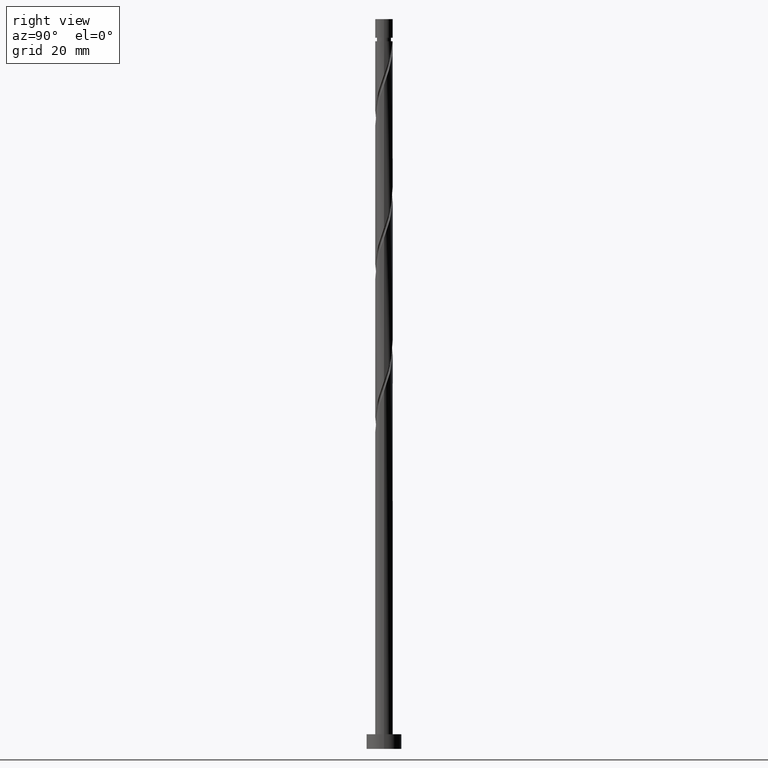
[diagram: clean part render]
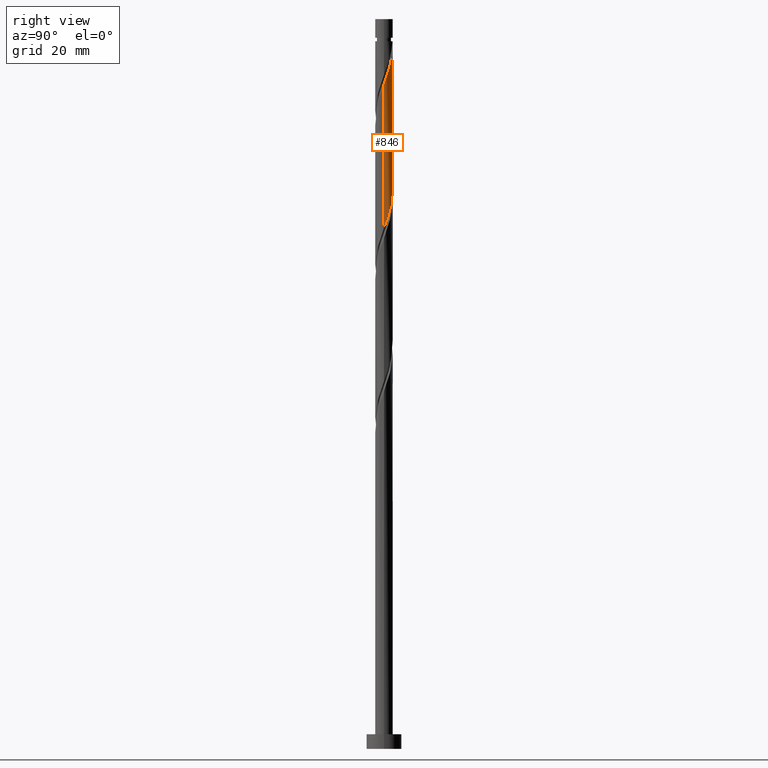
[diagram: same view with one face highlighted and labeled with its STEP entity id]
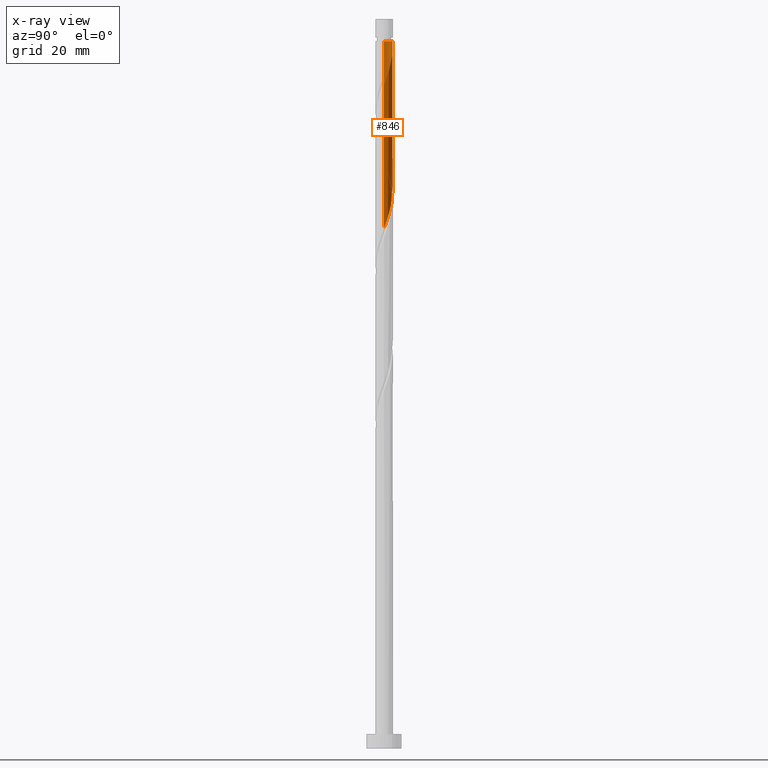
[diagram: x-ray of the same camera — body ghosted, the highlighted face saturated]
A machine part, right view. The second image highlights one B-rep face of the part: STEP entity #846.
The next image is the same camera in x-ray: the body ghosted, the highlighted face saturated — about 0% of this face is hidden behind the body in this view.
In plain terms, the highlighted cylindrical surface (edge-blend (fillet) strip) has radius 3 mm, axis along (-0, -0, -1).
Its self-contained STEP definition (entity closure, byte-faithful):
#1 = CARTESIAN_POINT ( 'NONE',  ( 2.940000000000005720, 0.5969924622639731782, 229.2760515846316594 ) ) ;
#20 = CARTESIAN_POINT ( 'NONE',  ( 3.000000000000000888, 0.03609869149917855485, 178.5509313507628519 ) ) ;
#25 = EDGE_CURVE ( 'NONE', #1520, #436, #510, .T. ) ;
#66 = DIRECTION ( 'NONE',  ( -0.000000000000000000, -0.000000000000000000, -1.000000000000000000 ) ) ;
#79 = ORIENTED_EDGE ( 'NONE', *, *, #25, .F. ) ;
#113 = EDGE_LOOP ( 'NONE', ( #1841, #682, #79, #1890, #592 ) ) ;
#143 = CIRCLE ( 'NONE', #203, 2.999999999999983125 ) ;
#169 = DIRECTION ( 'NONE',  ( -0.000000000000000000, -0.000000000000000000, -1.000000000000000000 ) ) ;
#175 = VECTOR ( 'NONE', #1135, 1000.000000000000000 ) ;
#184 = CYLINDRICAL_SURFACE ( 'NONE', #1796, 3.000000000000000444 ) ;
#186 = CARTESIAN_POINT ( 'NONE',  ( 2.516856822501207791, 1.667239772048620283, 183.3385515846316594 ) ) ;
#189 = DIRECTION ( 'NONE',  ( -1.000000000000000000, 0.000000000000000000, 0.000000000000000000 ) ) ;
#203 = AXIS2_PLACEMENT_3D ( 'NONE', #1802, #169, #189 ) ;
#220 = EDGE_CURVE ( 'NONE', #1602, #641, #1868, .T. ) ;
#249 = FACE_OUTER_BOUND ( 'NONE', #113, .T. ) ;
#251 = CARTESIAN_POINT ( 'NONE',  ( -1.366312515670595085, 2.670803270464129575, 195.5260515846317162 ) ) ;
#253 = CARTESIAN_POINT ( 'NONE',  ( 2.872735104178516075, 0.9282509055703001000, 230.2135515846316309 ) ) ;
#261 = CARTESIAN_POINT ( 'NONE',  ( 1.667239772048623614, 2.516856822501210456, 235.8385515846316309 ) ) ;
#273 = EDGE_CURVE ( 'NONE', #1341, #641, #143, .T. ) ;
#311 = CARTESIAN_POINT ( 'NONE',  ( 2.990997868343353794, 0.4101078809741718900, 179.5885515846317446 ) ) ;
#320 = CARTESIAN_POINT ( 'NONE',  ( 2.999131382082420583, 0.07218693100826245601, 178.6510515846317162 ) ) ;
#368 = CARTESIAN_POINT ( 'NONE',  ( -2.733444741546702250, 1.236236160654865968, 201.1510515846316878 ) ) ;
#381 = CARTESIAN_POINT ( 'NONE',  ( -3.000000000000000444, 0.000000000000000000, 250.0000000000000000 ) ) ;
#404 = CARTESIAN_POINT ( 'NONE',  ( 2.594154378914898196, 1.544221415739433168, 232.0885515846316025 ) ) ;
#410 = DIRECTION ( 'NONE',  ( -0.000000000000000000, -0.000000000000000000, -1.000000000000000000 ) ) ;
#436 = VERTEX_POINT ( 'NONE', #1501 ) ;
#444 = CARTESIAN_POINT ( 'NONE',  ( -1.926365846447885888, 2.299807519258759037, 197.4010515846316309 ) ) ;
#469 = CARTESIAN_POINT ( 'NONE',  ( 2.299807519258759037, 1.926365846447885444, 184.2760515846316878 ) ) ;
#480 = CARTESIAN_POINT ( 'NONE',  ( 2.082758216016309394, 2.185491920847150826, 185.2135515846316878 ) ) ;
#498 = CARTESIAN_POINT ( 'NONE',  ( 0.2657340189576466449, 3.007264895821488260, 190.8385515846317162 ) ) ;
#510 =( BOUNDED_CURVE ( )  B_SPLINE_CURVE ( 2, ( #1148, #1264, #522, #1705, #368, #830, #1775, #1764, #444, #1590, #251, #857, #1676, #1800, #940, #498, #1088, #1526, #1209, #1079, #1786, #480, #469, #186, #1221, #766, #1057, #311, #320, #20, #797 ),
 .UNSPECIFIED., .F., .T. ) 
 B_SPLINE_CURVE_WITH_KNOTS ( ( 3, 2, 2, 2, 2, 2, 2, 2, 2, 2, 2, 2, 2, 2, 2, 3 ),
 ( 0.4295303401299216950, 0.4375000000000000000, 0.4464285714285714524, 0.4553571428571428492, 0.4642857142857143016, 0.4732142857142856984, 0.4821428571428571508, 0.4910714285714285476, 0.5000000000000000000, 0.5089285714285713969, 0.5178571428571429047, 0.5267857142857143016, 0.5357142857142856984, 0.5446428571428570953, 0.5535714285714286031, 0.5545303401299218615 ),
 .UNSPECIFIED. ) 
 CURVE ( )  GEOMETRIC_REPRESENTATION_ITEM ( )  RATIONAL_B_SPLINE_CURVE ( ( 0.9079949616362033016, 0.9039886423360659062, 0.9090909090909328194, 0.9033747362666078029, 0.9090909090909328194, 0.9033747362666078029, 0.9090909090909328194, 0.9033747362666078029, 0.9090909090909328194, 0.9033747362666078029, 0.9090909090909328194, 0.9033747362666078029, 0.9090909090909328194, 0.9033747362666078029, 0.9090909090909328194, 0.9033747362666078029, 0.9090909090909328194, 0.9033747362666078029, 0.9090909090909328194, 0.9033747362666078029, 0.9090909090909328194, 0.9033747362666078029, 0.9090909090909328194, 0.9033747362666078029, 0.9090909090909328194, 0.9033747362666078029, 0.9090909090909328194, 0.9033747362666078029, 0.9090909090909328194, 0.9084770030214747161, 0.9079949616362031906 ) ) 
 REPRESENTATION_ITEM ( '' )  );
#522 = CARTESIAN_POINT ( 'NONE',  ( -2.940000000000000391, 0.5969924622639731782, 203.0260515846316878 ) ) ;
#543 = LINE ( 'NONE', #381, #175 ) ;
#576 = CARTESIAN_POINT ( 'NONE',  ( 3.000000000000000444, 3.673940397442060361E-16, 250.0000000000000000 ) ) ;
#579 = CARTESIAN_POINT ( 'NONE',  ( 3.000000000000004885, 0.3015113445777639622, 228.4398055856892142 ) ) ;
#586 = LINE ( 'NONE', #576, #715 ) ;
#590 = CARTESIAN_POINT ( 'NONE',  ( 1.366312515670598415, 2.670803270464134016, 236.7760515846316594 ) ) ;
#592 = ORIENTED_EDGE ( 'NONE', *, *, #273, .T. ) ;
#602 = CARTESIAN_POINT ( 'NONE',  ( 2.185491920847155267, 2.082758216016311170, 233.9635515846316025 ) ) ;
#641 = VERTEX_POINT ( 'NONE', #973 ) ;
#682 = ORIENTED_EDGE ( 'NONE', *, *, #720, .T. ) ;
#715 = VECTOR ( 'NONE', #410, 1000.000000000000000 ) ;
#720 = EDGE_CURVE ( 'NONE', #1602, #436, #586, .T. ) ;
#721 = CARTESIAN_POINT ( 'NONE',  ( -0.2657340189576500311, 3.007264895821493145, 241.4635515846316594 ) ) ;
#766 = CARTESIAN_POINT ( 'NONE',  ( 2.824749718427052692, 1.065385259292569886, 181.4635515846316878 ) ) ;
#788 = CARTESIAN_POINT ( 'NONE',  ( -3.000000000000000444, -3.731443380381541184E-15, 204.7005686625377621 ) ) ;
#797 = CARTESIAN_POINT ( 'NONE',  ( 3.000000000000000888, -1.216450542004382730E-15, 178.4505686625377905 ) ) ;
#830 = CARTESIAN_POINT ( 'NONE',  ( -2.594154378914892867, 1.544221415739432057, 200.2135515846317162 ) ) ;
#841 = DIRECTION ( 'NONE',  ( -1.000000000000000000, 0.000000000000000000, 0.000000000000000000 ) ) ;
#846 = ADVANCED_FACE ( 'NONE', ( #249 ), #184, .T. ) ;
#857 = CARTESIAN_POINT ( 'NONE',  ( -1.065385259292570330, 2.824749718427053136, 194.5885515846317162 ) ) ;
#867 = CARTESIAN_POINT ( 'NONE',  ( 0.7377465701333738579, 2.907873793385207239, 238.6510515846316878 ) ) ;
#889 = CARTESIAN_POINT ( 'NONE',  ( 3.000000000000006217, -7.164371290332501581E-16, 227.6015345067256419 ) ) ;
#940 = CARTESIAN_POINT ( 'NONE',  ( -0.07218693100826287234, 2.999131382082421027, 191.7760515846316594 ) ) ;
#973 = CARTESIAN_POINT ( 'NONE',  ( -0.5969924622639731782, 2.940000000000007052, 242.4010515846317730 ) ) ;
#1054 = EDGE_CURVE ( 'NONE', #1341, #1520, #543, .T. ) ;
#1057 = CARTESIAN_POINT ( 'NONE',  ( 2.907873793385203687, 0.7377465701333705272, 180.5260515846317446 ) ) ;
#1079 = CARTESIAN_POINT ( 'NONE',  ( 1.544221415739432501, 2.594154378914892867, 187.0885515846316878 ) ) ;
#1088 = CARTESIAN_POINT ( 'NONE',  ( 0.5969924622639738443, 2.940000000000000391, 189.9010515846316878 ) ) ;
#1135 = DIRECTION ( 'NONE',  ( -0.000000000000000000, -0.000000000000000000, -1.000000000000000000 ) ) ;
#1148 = CARTESIAN_POINT ( 'NONE',  ( -3.000000000000000444, -3.731443380381541184E-15, 204.7005686625377621 ) ) ;
#1191 = CARTESIAN_POINT ( 'NONE',  ( 0.07218693100826439890, 2.999131382082425912, 240.5260515846316878 ) ) ;
#1209 = CARTESIAN_POINT ( 'NONE',  ( 1.236236160654866190, 2.733444741546702250, 188.0260515846316594 ) ) ;
#1221 = CARTESIAN_POINT ( 'NONE',  ( 2.670803270464129575, 1.366312515670594641, 182.4010515846317162 ) ) ;
#1264 = CARTESIAN_POINT ( 'NONE',  ( -3.000000000000003109, 0.3015113445777521384, 203.8622975835741613 ) ) ;
#1325 = CARTESIAN_POINT ( 'NONE',  ( -2.999999999999983125, 0.000000000000000000, 242.4010515846316878 ) ) ;
#1326 = CARTESIAN_POINT ( 'NONE',  ( 1.926365846447889663, 2.299807519258761257, 234.9010515846316878 ) ) ;
#1339 = CARTESIAN_POINT ( 'NONE',  ( 3.000000000000006217, -7.164371290332501581E-16, 227.6015345067256419 ) ) ;
#1341 = VERTEX_POINT ( 'NONE', #1325 ) ;
#1501 = CARTESIAN_POINT ( 'NONE',  ( 3.000000000000000888, -1.216450542004382730E-15, 178.4505686625377905 ) ) ;
#1520 = VERTEX_POINT ( 'NONE', #788 ) ;
#1526 = CARTESIAN_POINT ( 'NONE',  ( 0.9282509055703006551, 2.872735104178511634, 188.9635515846316878 ) ) ;
#1590 = CARTESIAN_POINT ( 'NONE',  ( -1.667239772048620505, 2.516856822501207347, 196.4635515846317162 ) ) ;
#1602 = VERTEX_POINT ( 'NONE', #889 ) ;
#1624 = CARTESIAN_POINT ( 'NONE',  ( 0.4101078809741743880, 2.990997868343357791, 239.5885515846316594 ) ) ;
#1634 = CARTESIAN_POINT ( 'NONE',  ( 1.065385259292573217, 2.824749718427055800, 237.7135515846316878 ) ) ;
#1676 = CARTESIAN_POINT ( 'NONE',  ( -0.7377465701333714154, 2.907873793385202799, 193.6510515846316309 ) ) ;
#1705 = CARTESIAN_POINT ( 'NONE',  ( -2.872735104178512078, 0.9282509055702999889, 202.0885515846316878 ) ) ;
#1757 = CARTESIAN_POINT ( 'NONE',  ( -0.5969924622639731782, 2.940000000000006608, 242.4010515846317730 ) ) ;
#1764 = CARTESIAN_POINT ( 'NONE',  ( -2.185491920847151270, 2.082758216016308950, 198.3385515846316594 ) ) ;
#1775 = CARTESIAN_POINT ( 'NONE',  ( -2.389823149881022069, 1.813489815877870504, 199.2760515846316594 ) ) ;
#1778 = CARTESIAN_POINT ( 'NONE',  ( 2.733444741546708467, 1.236236160654867078, 231.1510515846316309 ) ) ;
#1786 = CARTESIAN_POINT ( 'NONE',  ( 1.813489815877870948, 2.389823149881022069, 186.1510515846316309 ) ) ;
#1796 = AXIS2_PLACEMENT_3D ( 'NONE', #1828, #66, #841 ) ;
#1800 = CARTESIAN_POINT ( 'NONE',  ( -0.4101078809741725562, 2.990997868343353794, 192.7135515846317446 ) ) ;
#1802 = CARTESIAN_POINT ( 'NONE',  ( 0.000000000000000000, 0.000000000000000000, 242.4010515846316878 ) ) ;
#1828 = CARTESIAN_POINT ( 'NONE',  ( 0.000000000000000000, 0.000000000000000000, 250.0000000000000000 ) ) ;
#1841 = ORIENTED_EDGE ( 'NONE', *, *, #220, .F. ) ;
#1868 =( BOUNDED_CURVE ( )  B_SPLINE_CURVE ( 2, ( #1339, #579, #1, #253, #1778, #404, #1915, #602, #1326, #261, #590, #1634, #867, #1624, #1191, #721, #1757 ),
 .UNSPECIFIED., .F., .T. ) 
 B_SPLINE_CURVE_WITH_KNOTS ( ( 3, 2, 2, 2, 2, 2, 2, 2, 3 ),
 ( 0.6795303401299220836, 0.6875000000000000000, 0.6964285714285713969, 0.7053571428571427937, 0.7142857142857144126, 0.7232142857142858094, 0.7321428571428573173, 0.7410714285714287142, 0.7500000000000001110 ),
 .UNSPECIFIED. ) 
 CURVE ( )  GEOMETRIC_REPRESENTATION_ITEM ( )  RATIONAL_B_SPLINE_CURVE ( ( 0.9079949616362101850, 0.9039886423360735668, 0.9090909090909401469, 0.9033747362666152414, 0.9090909090909401469, 0.9033747362666152414, 0.9090909090909401469, 0.9033747362666152414, 0.9090909090909401469, 0.9033747362666152414, 0.9090909090909401469, 0.9033747362666152414, 0.9090909090909401469, 0.9033747362666152414, 0.9090909090909401469, 0.9033747362666151304, 0.9090909090909402579 ) ) 
 REPRESENTATION_ITEM ( '' )  );
#1890 = ORIENTED_EDGE ( 'NONE', *, *, #1054, .F. ) ;
#1915 = CARTESIAN_POINT ( 'NONE',  ( 2.389823149881026954, 1.813489815877872724, 233.0260515846316878 ) ) ;